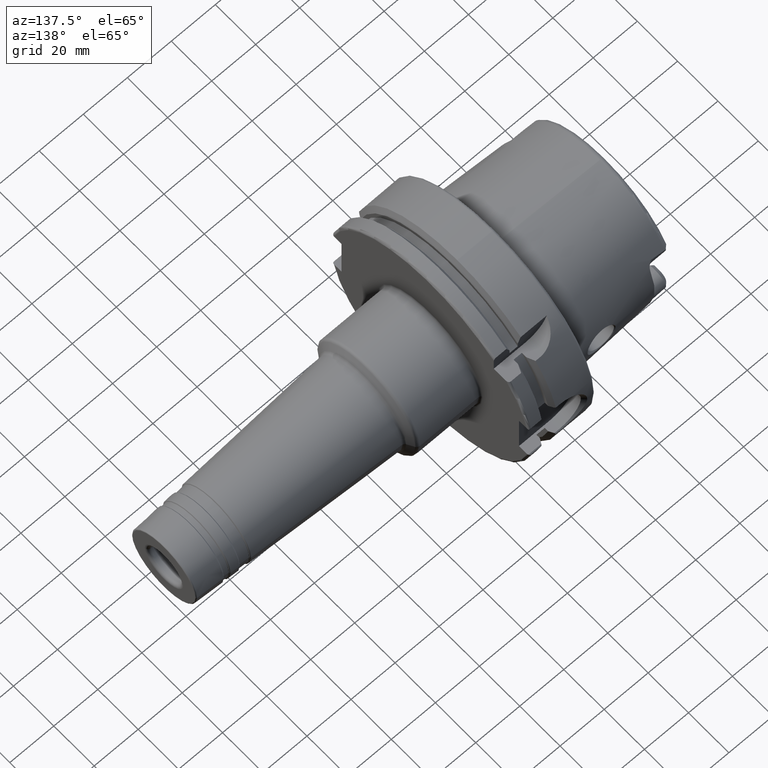
[diagram: clean part render]
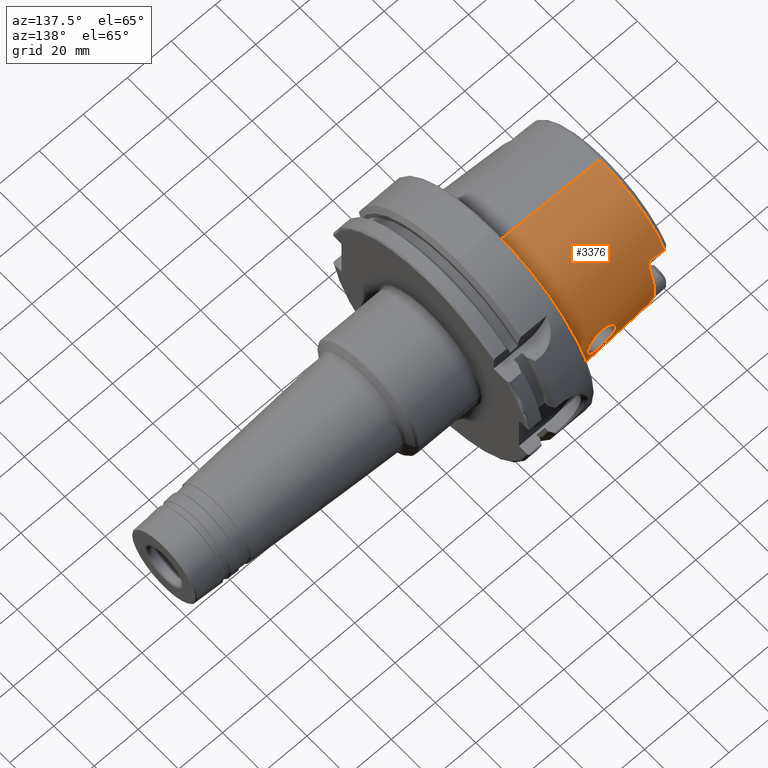
[diagram: same view with one face highlighted and labeled with its STEP entity id]
A machine part, auxiliary view. The second image highlights one B-rep face of the part: STEP entity #3376.
In plain terms, the highlighted conical surface has half-angle 2.868 deg.
Its self-contained STEP definition (entity closure, byte-faithful):
#2=CARTESIAN_POINT('',(-1.893703631359E0,0.E0,0.E0));
#3=DIRECTION('',(-1.E0,0.E0,0.E0));
#4=DIRECTION('',(0.E0,9.060367502718E-1,-4.231990160161E-1));
#5=AXIS2_PLACEMENT_3D('',#2,#3,#4);
#7=CARTESIAN_POINT('',(-9.842868075308E-2,1.833079246693E-10,1.491101036824E0));
#8=CARTESIAN_POINT('',(-9.842867891766E-2,7.435984661004E-2,1.491101036916E0));
#9=CARTESIAN_POINT('',(-9.906543530853E-2,2.230740001245E-1,1.480026445825E0));
#10=CARTESIAN_POINT('',(-9.880950776748E-2,4.411665630535E-1,1.430220253021E0));
#11=CARTESIAN_POINT('',(-9.887808334538E-2,6.494030020027E-1,1.348500930628E0));
#12=CARTESIAN_POINT('',(-9.885970857483E-2,8.431331716230E-1,1.236648778696E0));
#13=CARTESIAN_POINT('',(-9.886463207913E-2,1.018029052116E0,1.097174495586E0));
#14=CARTESIAN_POINT('',(-9.886331283247E-2,1.170183869109E0,9.331904621137E-1));
#15=CARTESIAN_POINT('',(-9.886366631483E-2,1.296198706489E0,7.483606790954E-1));
#16=CARTESIAN_POINT('',(-9.886357163205E-2,1.393258608502E0,5.468137056757E-1));
#17=CARTESIAN_POINT('',(-9.886359688079E-2,1.459195414972E0,3.330518312804E-1));
#18=CARTESIAN_POINT('',(-9.886359056861E-2,1.492536207401E0,1.118501257205E-1));
#19=CARTESIAN_POINT('',(-9.886359056861E-2,1.492536207412E0,
-1.118501255728E-1));
#20=CARTESIAN_POINT('',(-9.886359688079E-2,1.459195415005E0,
-3.330518311366E-1));
#21=CARTESIAN_POINT('',(-9.886357163205E-2,1.393258608556E0,
-5.468137055373E-1));
#22=CARTESIAN_POINT('',(-9.886366631485E-2,1.296198706564E0,
-7.483606789658E-1));
#23=CARTESIAN_POINT('',(-9.886331283240E-2,1.170183869202E0,
-9.331904619981E-1));
#24=CARTESIAN_POINT('',(-9.886463207940E-2,1.018029052218E0,-1.097174495491E0));
#25=CARTESIAN_POINT('',(-9.885970857380E-2,8.431331717537E-1,
-1.236648778606E0));
#26=CARTESIAN_POINT('',(-9.887808334921E-2,6.494030021276E-1,
-1.348500930572E0));
#27=CARTESIAN_POINT('',(-9.880950775318E-2,4.411665632053E-1,
-1.430220252961E0));
#28=CARTESIAN_POINT('',(-9.906543536189E-2,2.230740003706E-1,
-1.480026445818E0));
#29=CARTESIAN_POINT('',(-9.842867880268E-2,7.435984627187E-2,
-1.491101036922E0));
#30=CARTESIAN_POINT('',(-9.842868075308E-2,-1.833076623798E-10,
-1.491101036824E0));
#32=CARTESIAN_POINT('',(-1.893703631359E0,0.E0,0.E0));
#33=DIRECTION('',(-1.E0,0.E0,0.E0));
#34=DIRECTION('',(0.E0,0.E0,1.E0));
#35=AXIS2_PLACEMENT_3D('',#32,#33,#34);
#37=CARTESIAN_POINT('',(-1.893703631359E0,1.269565425091E0,5.929989467927E-1));
#38=CARTESIAN_POINT('',(-1.874253455519E0,1.269477491526E0,5.954897439467E-1));
#39=CARTESIAN_POINT('',(-1.836775511646E0,1.269203948707E0,6.004854071837E-1));
#40=CARTESIAN_POINT('',(-1.784962852918E0,1.268496060085E0,6.080098746605E-1));
#41=CARTESIAN_POINT('',(-1.737155377923E0,1.267471896304E0,6.156448090786E-1));
#42=CARTESIAN_POINT('',(-1.693212233396E0,1.266098461539E0,6.234654054372E-1));
#43=CARTESIAN_POINT('',(-1.666346515178E0,1.264907288924E0,6.288976493715E-1));
#44=CARTESIAN_POINT('',(-1.653543307087E0,1.264224999459E0,6.316981488106E-1));
#46=CARTESIAN_POINT('',(-1.893703631359E0,1.269565425091E0,-5.929989467927E-1));
#47=CARTESIAN_POINT('',(-1.874253455519E0,1.269477491526E0,-5.954897439467E-1));
#48=CARTESIAN_POINT('',(-1.836775511646E0,1.269203948707E0,-6.004854071837E-1));
#49=CARTESIAN_POINT('',(-1.784962852918E0,1.268496060085E0,-6.080098746605E-1));
#50=CARTESIAN_POINT('',(-1.737155377923E0,1.267471896304E0,-6.156448090786E-1));
#51=CARTESIAN_POINT('',(-1.693212233396E0,1.266098461539E0,-6.234654054372E-1));
#52=CARTESIAN_POINT('',(-1.666346515178E0,1.264907288924E0,-6.288976493715E-1));
#53=CARTESIAN_POINT('',(-1.653543307087E0,1.264224999459E0,-6.316981488106E-1));
#55=CARTESIAN_POINT('',(-8.417144799839E-1,1.453932972270E0,0.E0));
#56=CARTESIAN_POINT('',(-8.417144799839E-1,1.453932972270E0,
-1.671558866580E-2));
#57=CARTESIAN_POINT('',(-8.380608887690E-1,1.453545419045E0,
-4.910366136419E-2));
#58=CARTESIAN_POINT('',(-8.225539045080E-1,1.451997147672E0,
-9.522442732570E-2));
#59=CARTESIAN_POINT('',(-7.981177710894E-1,1.449844309345E0,
-1.369008362917E-1));
#60=CARTESIAN_POINT('',(-7.654738924412E-1,1.447514906904E0,
-1.735572632240E-1));
#61=CARTESIAN_POINT('',(-7.254448907915E-1,1.445524944310E0,
-2.039190359267E-1));
#62=CARTESIAN_POINT('',(-6.800603389776E-1,1.444436946839E0,
-2.263676315310E-1));
#63=CARTESIAN_POINT('',(-6.315845638878E-1,1.444649084669E0,
-2.401160480639E-1));
#64=CARTESIAN_POINT('',(-5.819297163326E-1,1.446326145740E0,
-2.450976956297E-1));
#65=CARTESIAN_POINT('',(-5.320157118204E-1,1.449491515842E0,
-2.413962114230E-1));
#66=CARTESIAN_POINT('',(-4.831377733172E-1,1.454005219480E0,
-2.290223081444E-1));
#67=CARTESIAN_POINT('',(-4.358701092850E-1,1.459700223461E0,
-2.072766374915E-1));
#68=CARTESIAN_POINT('',(-3.945722875465E-1,1.465731840157E0,
-1.776777673691E-1));
#69=CARTESIAN_POINT('',(-3.603628531676E-1,1.471442952761E0,
-1.413979939843E-1));
#70=CARTESIAN_POINT('',(-3.343943494176E-1,1.476204822525E0,
-9.981274181612E-2));
#71=CARTESIAN_POINT('',(-3.171510614973E-1,1.479567868799E0,
-5.228675367888E-2));
#72=CARTESIAN_POINT('',(-3.128946030769E-1,1.480426251414E0,
-1.793267778542E-2));
#73=CARTESIAN_POINT('',(-3.128946030769E-1,1.480426251414E0,0.E0));
#75=CARTESIAN_POINT('',(-3.128946030769E-1,1.480426251414E0,0.E0));
#76=CARTESIAN_POINT('',(-3.128946030769E-1,1.480426251414E0,1.781719286497E-2));
#77=CARTESIAN_POINT('',(-3.171001411675E-1,1.479578245587E0,5.198114673351E-2));
#78=CARTESIAN_POINT('',(-3.341549507293E-1,1.476250752794E0,9.929353133562E-2));
#79=CARTESIAN_POINT('',(-3.599714386170E-1,1.471512103093E0,1.408914393634E-1));
#80=CARTESIAN_POINT('',(-3.941332292841E-1,1.465800185617E0,1.773078540132E-1));
#81=CARTESIAN_POINT('',(-4.355379885785E-1,1.459743523452E0,2.070964666498E-1));
#82=CARTESIAN_POINT('',(-4.828785967716E-1,1.454032494596E0,2.289338507002E-1));
#83=CARTESIAN_POINT('',(-5.317650613303E-1,1.449510988632E0,2.413562746841E-1));
#84=CARTESIAN_POINT('',(-5.816969790236E-1,1.446337343567E0,2.451013566316E-1));
#85=CARTESIAN_POINT('',(-6.313637040153E-1,1.444653080832E0,2.401590989484E-1));
#86=CARTESIAN_POINT('',(-6.798719422088E-1,1.444435005198E0,2.264399881313E-1));
#87=CARTESIAN_POINT('',(-7.252466487E-1,1.445517833896E0,2.040382740442E-1));
#88=CARTESIAN_POINT('',(-7.652691978835E-1,1.447502606869E0,1.737404486665E-1));
#89=CARTESIAN_POINT('',(-7.979236126429E-1,1.449828654724E0,1.371649142051E-1));
#90=CARTESIAN_POINT('',(-8.224404322749E-1,1.451986155626E0,9.548595405441E-2));
#91=CARTESIAN_POINT('',(-8.380320633328E-1,1.453542342743E0,4.927720008152E-2));
#92=CARTESIAN_POINT('',(-8.417144799839E-1,1.453932972270E0,1.678202928619E-2));
#93=CARTESIAN_POINT('',(-8.417144799839E-1,1.453932972270E0,0.E0));
#178=CARTESIAN_POINT('',(-1.653543307087E0,1.264224999459E0,
-6.316981488106E-1));
#179=CARTESIAN_POINT('',(-1.650787563771E0,1.264078144498E0,
-6.323009241116E-1));
#180=CARTESIAN_POINT('',(-1.645314653337E0,1.264352892500E0,
-6.323650907480E-1));
#181=CARTESIAN_POINT('',(-1.636974865444E0,1.266583215036E0,
-6.288334753723E-1));
#182=CARTESIAN_POINT('',(-1.629408577626E0,1.269916543253E0,
-6.229429963867E-1));
#183=CARTESIAN_POINT('',(-1.622271654441E0,1.273908342044E0,
-6.155669328007E-1));
#184=CARTESIAN_POINT('',(-1.615448451421E0,1.278367963667E0,
-6.070547183189E-1));
#185=CARTESIAN_POINT('',(-1.608765164692E0,1.283275889138E0,
-5.974109367146E-1));
#186=CARTESIAN_POINT('',(-1.602231148508E0,1.288603911389E0,
-5.866280589495E-1));
#187=CARTESIAN_POINT('',(-1.595980094541E0,1.294265994536E0,
-5.748089029294E-1));
#188=CARTESIAN_POINT('',(-1.590005378297E0,1.300359457161E0,
-5.616565417858E-1));
#189=CARTESIAN_POINT('',(-1.584430732942E0,1.306975248571E0,
-5.468276195848E-1));
#190=CARTESIAN_POINT('',(-1.579551656774E0,1.314169448156E0,
-5.299841867224E-1));
#191=CARTESIAN_POINT('',(-1.575889432080E0,1.321943035906E0,
-5.108280781594E-1));
#192=CARTESIAN_POINT('',(-1.574803149607E0,1.327460594361E0,
-4.963746407994E-1));
#193=CARTESIAN_POINT('',(-1.574803149606E0,1.330270770666E0,
-4.887255722600E-1));
#209=CARTESIAN_POINT('',(-1.574803149606E0,0.E0,0.E0));
#210=DIRECTION('',(1.E0,0.E0,0.E0));
#211=DIRECTION('',(0.E0,9.386572714716E-1,-3.448514560120E-1));
#212=AXIS2_PLACEMENT_3D('',#209,#210,#211);
#635=DIRECTION('',(-9.987493463681E-1,-1.021020391236E-10,-4.999743122625E-2));
#636=VECTOR('',#635,1.797523029311E0);
#637=CARTESIAN_POINT('',(-9.842868075308E-2,1.833079246693E-10,
1.491101036824E0));
#638=LINE('',#637,#636);
#639=CARTESIAN_POINT('',(-9.842868075308E-2,-1.833076623798E-10,
-1.491101036824E0));
#662=CARTESIAN_POINT('',(-9.842868075308E-2,1.833079246693E-10,
1.491101036824E0));
#664=DIRECTION('',(-9.987493463681E-1,1.021030404979E-10,4.999743122625E-2));
#665=VECTOR('',#664,1.797523029311E0);
#666=CARTESIAN_POINT('',(-9.842868075308E-2,-1.833076623798E-10,
-1.491101036824E0));
#667=LINE('',#666,#665);
#1170=CARTESIAN_POINT('',(-1.574803149606E0,1.330270770666E0,
4.887255722598E-1));
#1171=CARTESIAN_POINT('',(-1.574803149606E0,1.327615399299E0,
4.959532745025E-1));
#1172=CARTESIAN_POINT('',(-1.575773081441E0,1.322326179492E0,
5.098467531908E-1));
#1173=CARTESIAN_POINT('',(-1.579332216653E0,1.314530466252E0,
5.291235452051E-1));
#1174=CARTESIAN_POINT('',(-1.584332616967E0,1.307077460670E0,
5.466058137112E-1));
#1175=CARTESIAN_POINT('',(-1.590277867010E0,1.300038533700E0,
5.623745368847E-1));
#1176=CARTESIAN_POINT('',(-1.596730239490E0,1.293537808647E0,
5.763591707527E-1));
#1177=CARTESIAN_POINT('',(-1.603326534236E0,1.287666961683E0,
5.885506482079E-1));
#1178=CARTESIAN_POINT('',(-1.609939407861E0,1.282377142015E0,
5.991965227927E-1));
#1179=CARTESIAN_POINT('',(-1.616521929939E0,1.277631290936E0,
6.084768397883E-1));
#1180=CARTESIAN_POINT('',(-1.623339092804E0,1.273265595453E0,
6.167711802069E-1));
#1181=CARTESIAN_POINT('',(-1.630293864837E0,1.269496642949E0,
6.236949628216E-1));
#1182=CARTESIAN_POINT('',(-1.637297319873E0,1.266487618551E0,
6.289884285080E-1));
#1183=CARTESIAN_POINT('',(-1.645515608605E0,1.264329317260E0,
6.323898265243E-1));
#1184=CARTESIAN_POINT('',(-1.650845506127E0,1.264081232275E0,
6.322882501369E-1));
#1185=CARTESIAN_POINT('',(-1.653543307087E0,1.264224999459E0,
6.316981488106E-1));
#2866=VERTEX_POINT('',#639);
#2867=VERTEX_POINT('',#662);
#2987=CARTESIAN_POINT('',(-1.574803149606E0,1.330270770666E0,
-4.887255722584E-1));
#2989=VERTEX_POINT('',#2987);
#2991=CARTESIAN_POINT('',(-1.653543307087E0,1.264224999459E0,
-6.316981488106E-1));
#2993=VERTEX_POINT('',#2991);
#2995=CARTESIAN_POINT('',(-1.653543307087E0,1.264224999459E0,
6.316981488106E-1));
#2997=VERTEX_POINT('',#2995);
#2999=CARTESIAN_POINT('',(-1.574803149606E0,1.330270770666E0,
4.887255722584E-1));
#3001=VERTEX_POINT('',#2999);
#3035=CARTESIAN_POINT('',(-1.893703631359E0,0.E0,-1.401229502788E0));
#3037=VERTEX_POINT('',#3035);
#3039=CARTESIAN_POINT('',(-1.893703631359E0,1.269565425091E0,
-5.929989467927E-1));
#3040=VERTEX_POINT('',#3039);
#3041=CARTESIAN_POINT('',(-1.893703631359E0,0.E0,1.401229502788E0));
#3042=CARTESIAN_POINT('',(-1.893703631359E0,1.269565425091E0,
5.929989467927E-1));
#3043=VERTEX_POINT('',#3041);
#3044=VERTEX_POINT('',#3042);
#3119=VERTEX_POINT('',#55);
#3120=VERTEX_POINT('',#73);
#3343=CARTESIAN_POINT('',(-9.960678980185E-1,0.E0,0.E0));
#3344=DIRECTION('',(1.E0,0.E0,0.E0));
#3345=DIRECTION('',(0.E0,0.E0,1.E0));
#3346=AXIS2_PLACEMENT_3D('',#3343,#3344,#3345);
#3347=CONICAL_SURFACE('',#3346,1.446200040189E0,2.868056E0);
#3349=ORIENTED_EDGE('',*,*,#3348,.T.);
#3351=ORIENTED_EDGE('',*,*,#3350,.F.);
#3353=ORIENTED_EDGE('',*,*,#3352,.F.);
#3355=ORIENTED_EDGE('',*,*,#3354,.T.);
#3357=ORIENTED_EDGE('',*,*,#3356,.T.);
#3359=ORIENTED_EDGE('',*,*,#3358,.T.);
#3361=ORIENTED_EDGE('',*,*,#3360,.F.);
#3363=ORIENTED_EDGE('',*,*,#3362,.F.);
#3365=ORIENTED_EDGE('',*,*,#3364,.F.);
#3367=ORIENTED_EDGE('',*,*,#3366,.F.);
#3368=EDGE_LOOP('',(#3349,#3351,#3353,#3355,#3357,#3359,#3361,#3363,#3365,
#3367));
#3369=FACE_OUTER_BOUND('',#3368,.F.);
#3371=ORIENTED_EDGE('',*,*,#3370,.F.);
#3373=ORIENTED_EDGE('',*,*,#3372,.F.);
#3374=EDGE_LOOP('',(#3371,#3373));
#3375=FACE_BOUND('',#3374,.F.);
#3376=ADVANCED_FACE('',(#3369,#3375),#3347,.T.);
#6=CIRCLE('',#5,1.401229502788E0);
#31=B_SPLINE_CURVE_WITH_KNOTS('',3,(#7,#8,#9,#10,#11,#12,#13,#14,#15,#16,#17,
#18,#19,#20,#21,#22,#23,#24,#25,#26,#27,#28,#29,#30),.UNSPECIFIED.,.F.,.F.,(4,1,
1,1,1,1,1,1,1,1,1,1,1,1,1,1,1,1,1,1,1,4),(0.E0,4.761904761905E-2,
9.523809523810E-2,1.428571428571E-1,1.904761904762E-1,2.380952380952E-1,
2.857142857143E-1,3.333333333333E-1,3.809523809524E-1,4.285714285714E-1,
4.761904761905E-1,5.238095238095E-1,5.714285714286E-1,6.190476190476E-1,
6.666666666667E-1,7.142857142857E-1,7.619047619048E-1,8.095238095238E-1,
8.571428571429E-1,9.047619047619E-1,9.523809523810E-1,1.E0),.UNSPECIFIED.);
#36=CIRCLE('',#35,1.401229502788E0);
#45=B_SPLINE_CURVE_WITH_KNOTS('',3,(#37,#38,#39,#40,#41,#42,#43,#44),
.UNSPECIFIED.,.F.,.F.,(4,1,1,1,1,4),(0.E0,2.E-1,4.E-1,6.E-1,8.E-1,1.E0),
.UNSPECIFIED.);
#54=B_SPLINE_CURVE_WITH_KNOTS('',3,(#46,#47,#48,#49,#50,#51,#52,#53),
.UNSPECIFIED.,.F.,.F.,(4,1,1,1,1,4),(0.E0,2.E-1,4.E-1,6.E-1,8.E-1,1.E0),
.UNSPECIFIED.);
#74=B_SPLINE_CURVE_WITH_KNOTS('',3,(#55,#56,#57,#58,#59,#60,#61,#62,#63,#64,#65,
#66,#67,#68,#69,#70,#71,#72,#73),.UNSPECIFIED.,.F.,.F.,(4,1,1,1,1,1,1,1,1,1,1,1,
1,1,1,1,4),(0.E0,6.25E-2,1.25E-1,1.875E-1,2.5E-1,3.125E-1,3.75E-1,4.375E-1,
5.E-1,5.625E-1,6.25E-1,6.875E-1,7.5E-1,8.125E-1,8.75E-1,9.375E-1,1.E0),
.UNSPECIFIED.);
#94=B_SPLINE_CURVE_WITH_KNOTS('',3,(#75,#76,#77,#78,#79,#80,#81,#82,#83,#84,#85,
#86,#87,#88,#89,#90,#91,#92,#93),.UNSPECIFIED.,.F.,.F.,(4,1,1,1,1,1,1,1,1,1,1,1,
1,1,1,1,4),(0.E0,6.25E-2,1.25E-1,1.875E-1,2.5E-1,3.125E-1,3.75E-1,4.375E-1,
5.E-1,5.625E-1,6.25E-1,6.875E-1,7.5E-1,8.125E-1,8.75E-1,9.375E-1,1.E0),
.UNSPECIFIED.);
#194=B_SPLINE_CURVE_WITH_KNOTS('',3,(#178,#179,#180,#181,#182,#183,#184,#185,
#186,#187,#188,#189,#190,#191,#192,#193),.UNSPECIFIED.,.F.,.F.,(4,1,1,1,1,1,1,1,
1,1,1,1,1,4),(0.E0,7.692307692308E-2,1.538461538462E-1,2.307692307692E-1,
3.076923076923E-1,3.846153846154E-1,4.615384615385E-1,5.384615384615E-1,
6.153846153846E-1,6.923076923077E-1,7.692307692308E-1,8.461538461538E-1,
9.230769230769E-1,1.E0),.UNSPECIFIED.);
#213=CIRCLE('',#212,1.417206057096E0);
#1186=B_SPLINE_CURVE_WITH_KNOTS('',3,(#1170,#1171,#1172,#1173,#1174,#1175,#1176,
#1177,#1178,#1179,#1180,#1181,#1182,#1183,#1184,#1185),.UNSPECIFIED.,.F.,.F.,(4,
1,1,1,1,1,1,1,1,1,1,1,1,4),(0.E0,7.692307692308E-2,1.538461538462E-1,
2.307692307692E-1,3.076923076923E-1,3.846153846154E-1,4.615384615385E-1,
5.384615384615E-1,6.153846153846E-1,6.923076923077E-1,7.692307692308E-1,
8.461538461538E-1,9.230769230769E-1,1.E0),.UNSPECIFIED.);
#3348=EDGE_CURVE('',#3040,#3037,#6,.T.);
#3350=EDGE_CURVE('',#2866,#3037,#667,.T.);
#3352=EDGE_CURVE('',#2867,#2866,#31,.T.);
#3354=EDGE_CURVE('',#2867,#3043,#638,.T.);
#3356=EDGE_CURVE('',#3043,#3044,#36,.T.);
#3358=EDGE_CURVE('',#3044,#2997,#45,.T.);
#3360=EDGE_CURVE('',#3001,#2997,#1186,.T.);
#3362=EDGE_CURVE('',#2989,#3001,#213,.T.);
#3364=EDGE_CURVE('',#2993,#2989,#194,.T.);
#3366=EDGE_CURVE('',#3040,#2993,#54,.T.);
#3370=EDGE_CURVE('',#3119,#3120,#74,.T.);
#3372=EDGE_CURVE('',#3120,#3119,#94,.T.);